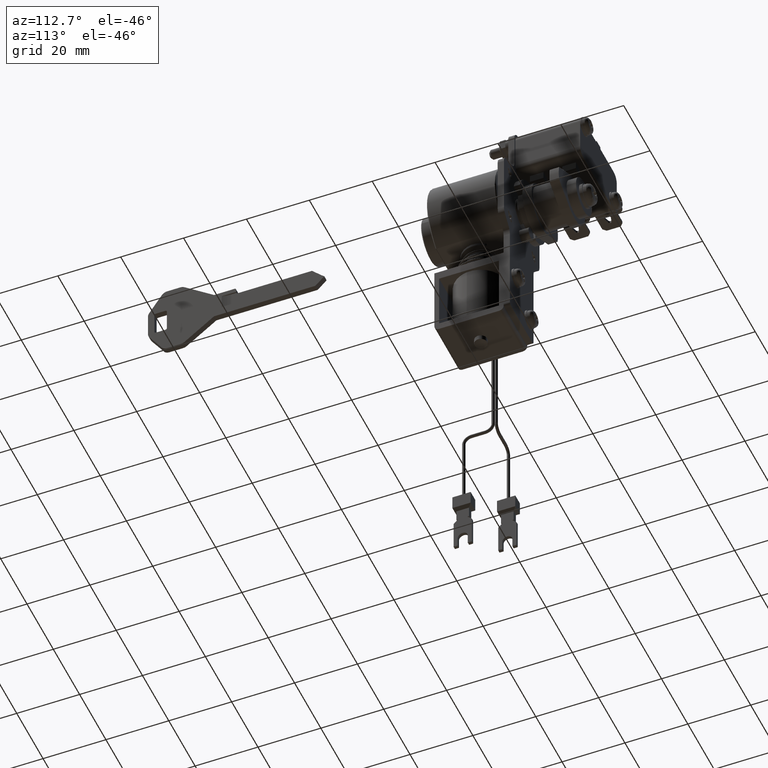
[diagram: clean part render]
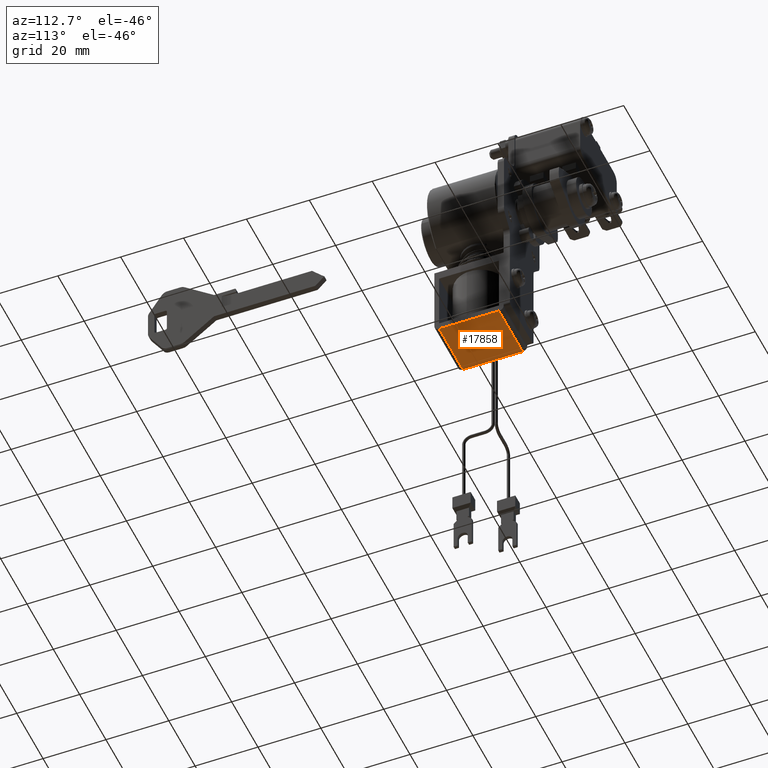
[diagram: same view with one face highlighted and labeled with its STEP entity id]
A machine part, auxiliary view. The second image highlights one B-rep face of the part: STEP entity #17858.
In plain terms, the highlighted face is a freeform B-spline surface patch.
Its self-contained STEP definition (entity closure, byte-faithful):
#16064=CARTESIAN_POINT('',(14.0,0.0,-47.500000000000000));
#16065=VERTEX_POINT('',#16064);
#16066=CARTESIAN_POINT('',(15.843081807354070,1.993834667372582,-47.500000000000000));
#16067=VERTEX_POINT('',#16066);
#16068=CARTESIAN_POINT('',(14.0,0.0,-47.500000000000000));
#16069=CARTESIAN_POINT('',(14.000000000000004,1.848780981102281,-47.500000000000000));
#16070=CARTESIAN_POINT('',(15.843081807354066,1.993834667372582,-47.500000000000000));
#16078=(BOUNDED_CURVE()B_SPLINE_CURVE(2,(#16068,#16069,#16070),.UNSPECIFIED.,.F.,.U.)B_SPLINE_CURVE_WITH_KNOTS((3,3),(0.500000000000000,0.736331300428099),.UNSPECIFIED.)CURVE()GEOMETRIC_REPRESENTATION_ITEM()RATIONAL_B_SPLINE_CURVE((1.0,0.723120658844981,0.969723355744688))REPRESENTATION_ITEM(''));
#16079=EDGE_CURVE('',#16065,#16067,#16078,.T.);
#16120=CARTESIAN_POINT('',(16.156918192645929,-1.993834667372582,-47.500000000000000));
#16121=VERTEX_POINT('',#16120);
#16127=CARTESIAN_POINT('',(16.156918192645932,-1.993834667372582,-47.500000000000007));
#16128=CARTESIAN_POINT('',(16.078580215211097,-2.0,-47.500000000000000));
#16129=CARTESIAN_POINT('',(16.0,-2.0,-47.500000000000000));
#16130=CARTESIAN_POINT('',(13.999999999999998,-2.000000000000000,-47.500000000000021));
#16131=CARTESIAN_POINT('',(14.0,0.0,-47.500000000000000));
#16139=(BOUNDED_CURVE()B_SPLINE_CURVE(2,(#16127,#16128,#16129,#16130,#16131),.UNSPECIFIED.,.F.,.U.)B_SPLINE_CURVE_WITH_KNOTS((3,2,3),(0.236331300428100,0.250000000000000,0.500000000000000),.UNSPECIFIED.)CURVE()GEOMETRIC_REPRESENTATION_ITEM()RATIONAL_B_SPLINE_CURVE((0.969723355744691,0.983986122341568,1.0,0.707106781186548,1.0))REPRESENTATION_ITEM(''));
#16140=EDGE_CURVE('',#16121,#16065,#16139,.T.);
#16163=CARTESIAN_POINT('',(18.0,0.0,-47.500000000000000));
#16164=VERTEX_POINT('',#16163);
#16165=CARTESIAN_POINT('',(15.843081807354071,1.993834667372582,-47.500000000000000));
#16166=CARTESIAN_POINT('',(15.921419784788894,2.000000000000000,-47.499999999999993));
#16167=CARTESIAN_POINT('',(16.0,2.0,-47.500000000000000));
#16168=CARTESIAN_POINT('',(18.000000000000007,2.000000000000000,-47.500000000000021));
#16169=CARTESIAN_POINT('',(18.0,0.0,-47.500000000000000));
#16177=(BOUNDED_CURVE()B_SPLINE_CURVE(2,(#16165,#16166,#16167,#16168,#16169),.UNSPECIFIED.,.F.,.U.)B_SPLINE_CURVE_WITH_KNOTS((3,2,3),(0.736331300428100,0.750000000000000,1.0),.UNSPECIFIED.)CURVE()GEOMETRIC_REPRESENTATION_ITEM()RATIONAL_B_SPLINE_CURVE((0.969723355744691,0.983986122341568,1.0,0.707106781186548,1.0))REPRESENTATION_ITEM(''));
#16178=EDGE_CURVE('',#16067,#16164,#16177,.T.);
#16180=CARTESIAN_POINT('',(18.0,0.0,-47.500000000000000));
#16181=CARTESIAN_POINT('',(18.000000000000004,-1.848780981102293,-47.500000000000014));
#16182=CARTESIAN_POINT('',(16.156918192645932,-1.993834667372582,-47.500000000000007));
#16190=(BOUNDED_CURVE()B_SPLINE_CURVE(2,(#16180,#16181,#16182),.UNSPECIFIED.,.F.,.U.)B_SPLINE_CURVE_WITH_KNOTS((3,3),(0.0,0.236331300428100),.UNSPECIFIED.)CURVE()GEOMETRIC_REPRESENTATION_ITEM()RATIONAL_B_SPLINE_CURVE((1.0,0.723120658844979,0.969723355744691))REPRESENTATION_ITEM(''));
#16191=EDGE_CURVE('',#16164,#16121,#16190,.T.);
#17786=CARTESIAN_POINT('',(25.500000000000000,-9.0,-47.500000000000000));
#17787=VERTEX_POINT('',#17786);
#17801=CARTESIAN_POINT('',(25.500000000000000,9.0,-47.500000000000000));
#17802=VERTEX_POINT('',#17801);
#17803=CARTESIAN_POINT('',(25.500000000000000,9.0,-47.500000000000000));
#17804=CARTESIAN_POINT('',(25.500000000000000,-9.0,-47.500000000000000));
#17805=QUASI_UNIFORM_CURVE('',1,(#17803,#17804),.UNSPECIFIED.,.F.,.U.);
#17806=EDGE_CURVE('',#17802,#17787,#17805,.T.);
#17825=CARTESIAN_POINT('',(5.550950036825686,-9.899099965112509,-47.500000000000000));
#17826=CARTESIAN_POINT('',(26.449050472794031,-9.899099965112509,-47.500000000000000));
#17827=CARTESIAN_POINT('',(5.550950036825686,9.899100447910131,-47.500000000000000));
#17828=CARTESIAN_POINT('',(26.449050472794031,9.899100447910131,-47.500000000000000));
#17829=B_SPLINE_SURFACE_WITH_KNOTS('',1,1,((#17825,#17827),(#17826,#17828)),.UNSPECIFIED.,.F.,.F.,.U.,(2,2),(2,2),(0.0,20.898100435968349),(0.0,19.798200413022641),.UNSPECIFIED.);
#17830=CARTESIAN_POINT('',(6.500000000000000,-9.0,-47.500000000000000));
#17831=VERTEX_POINT('',#17830);
#17832=CARTESIAN_POINT('',(25.500000000000000,-9.0,-47.500000000000000));
#17833=CARTESIAN_POINT('',(6.500000000000000,-9.0,-47.500000000000000));
#17834=QUASI_UNIFORM_CURVE('',1,(#17832,#17833),.UNSPECIFIED.,.F.,.U.);
#17835=EDGE_CURVE('',#17787,#17831,#17834,.T.);
#17836=ORIENTED_EDGE('',*,*,#17835,.T.);
#17837=CARTESIAN_POINT('',(6.500000000000000,9.0,-47.500000000000000));
#17838=VERTEX_POINT('',#17837);
#17839=CARTESIAN_POINT('',(6.500000000000000,9.0,-47.500000000000000));
#17840=CARTESIAN_POINT('',(6.500000000000000,-9.0,-47.500000000000000));
#17841=QUASI_UNIFORM_CURVE('',1,(#17839,#17840),.UNSPECIFIED.,.F.,.U.);
#17842=EDGE_CURVE('',#17838,#17831,#17841,.T.);
#17843=ORIENTED_EDGE('',*,*,#17842,.F.);
#17844=CARTESIAN_POINT('',(25.500000000000000,9.0,-47.500000000000000));
#17845=CARTESIAN_POINT('',(6.500000000000000,9.0,-47.500000000000000));
#17846=QUASI_UNIFORM_CURVE('',1,(#17844,#17845),.UNSPECIFIED.,.F.,.U.);
#17847=EDGE_CURVE('',#17802,#17838,#17846,.T.);
#17848=ORIENTED_EDGE('',*,*,#17847,.F.);
#17849=ORIENTED_EDGE('',*,*,#17806,.T.);
#17850=EDGE_LOOP('',(#17836,#17843,#17848,#17849));
#17851=FACE_OUTER_BOUND('',#17850,.T.);
#17852=ORIENTED_EDGE('',*,*,#16191,.F.);
#17853=ORIENTED_EDGE('',*,*,#16178,.F.);
#17854=ORIENTED_EDGE('',*,*,#16079,.F.);
#17855=ORIENTED_EDGE('',*,*,#16140,.F.);
#17856=EDGE_LOOP('',(#17852,#17853,#17854,#17855));
#17857=FACE_BOUND('',#17856,.T.);
#17858=ADVANCED_FACE('',(#17851,#17857),#17829,.F.);